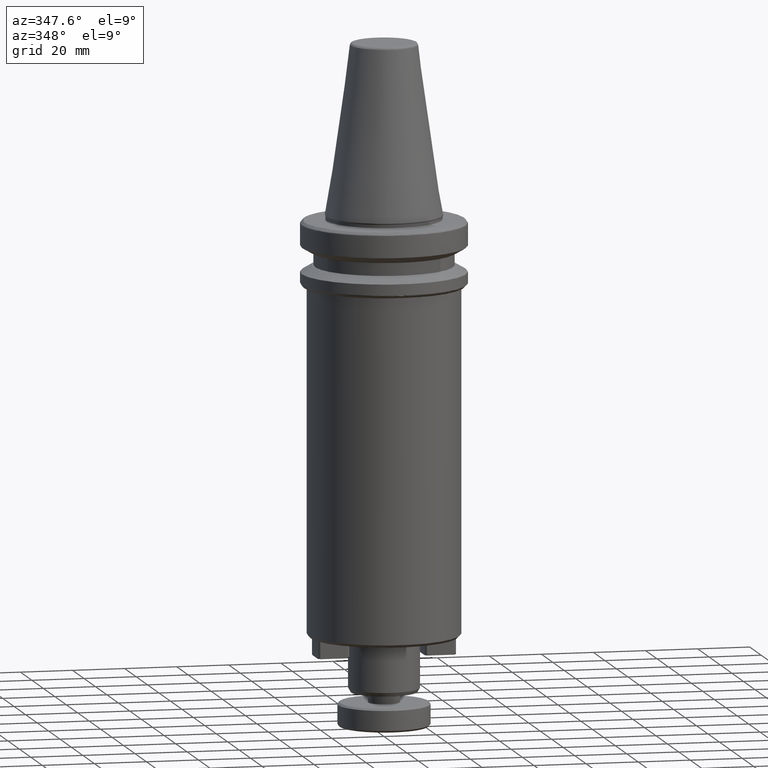
[diagram: clean part render]
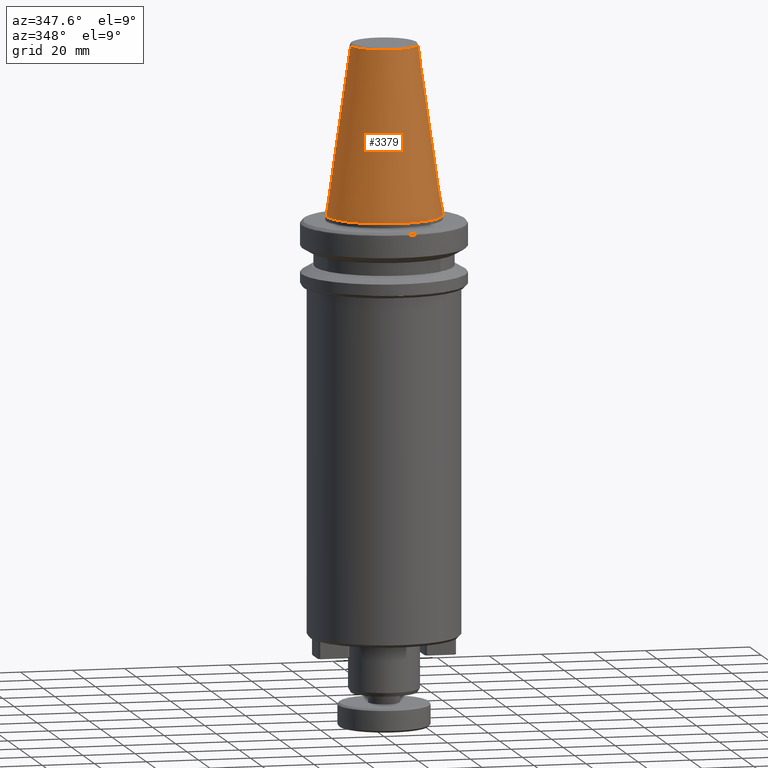
[diagram: same view with one face highlighted and labeled with its STEP entity id]
A machine part, auxiliary view. The second image highlights one B-rep face of the part: STEP entity #3379.
In plain terms, the highlighted conical surface has half-angle 8.297 deg.
Its self-contained STEP definition (entity closure, byte-faithful):
#22 = CARTESIAN_POINT ( 'NONE',  ( 22.22500000000000100, 2.721777511104992800E-015, 0.0000000000000000000 ) ) ;
#36 = FACE_OUTER_BOUND ( 'NONE', #2541, .T. ) ;
#174 = VECTOR ( 'NONE', #853, 1000.000000000000000 ) ;
#258 = AXIS2_PLACEMENT_3D ( 'NONE', #1555, #1553, #1542 ) ;
#353 = DIRECTION ( 'NONE',  ( 0.1443082272673070200, 1.767266086135363300E-017, -0.9895327864921743500 ) ) ;
#454 = CARTESIAN_POINT ( 'NONE',  ( 22.22500000000000500, 2.721777511104993200E-015, -2.775557561562891400E-014 ) ) ;
#566 = ORIENTED_EDGE ( 'NONE', *, *, #619, .F. ) ;
#599 = VERTEX_POINT ( 'NONE', #1602 ) ;
#603 = DIRECTION ( 'NONE',  ( -1.000000000000000000, 0.0000000000000000000, 0.0000000000000000000 ) ) ;
#619 = EDGE_CURVE ( 'NONE', #2594, #599, #1182, .T. ) ;
#657 = VERTEX_POINT ( 'NONE', #1122 ) ;
#685 = AXIS2_PLACEMENT_3D ( 'NONE', #1813, #1524, #2310 ) ;
#853 = DIRECTION ( 'NONE',  ( -0.1443082272673070200, 0.0000000000000000000, -0.9895327864921743500 ) ) ;
#913 = DIRECTION ( 'NONE',  ( 0.0000000000000000000, 0.0000000000000000000, -1.000000000000000000 ) ) ;
#1122 = CARTESIAN_POINT ( 'NONE',  ( 12.81219950706225000, 2.145409711370550300E-015, 64.54430822726730800 ) ) ;
#1182 = CIRCLE ( 'NONE', #258, 22.22500000000000500 ) ;
#1194 = CARTESIAN_POINT ( 'NONE',  ( 0.0000000000000000000, 0.0000000000000000000, 64.54430822726730800 ) ) ;
#1368 = ORIENTED_EDGE ( 'NONE', *, *, #3102, .T. ) ;
#1502 = AXIS2_PLACEMENT_3D ( 'NONE', #1194, #913, #603 ) ;
#1524 = DIRECTION ( 'NONE',  ( 0.0000000000000000000, 0.0000000000000000000, -1.000000000000000000 ) ) ;
#1542 = DIRECTION ( 'NONE',  ( 1.000000000000000000, 0.0000000000000000000, 9.822541477422708000E-017 ) ) ;
#1553 = DIRECTION ( 'NONE',  ( -0.0000000000000000000, -0.0000000000000000000, -1.000000000000000000 ) ) ;
#1555 = CARTESIAN_POINT ( 'NONE',  ( 0.0000000000000000000, 0.0000000000000000000, 0.0000000000000000000 ) ) ;
#1602 = CARTESIAN_POINT ( 'NONE',  ( -22.22500000000000100, 0.0000000000000000000, 0.0000000000000000000 ) ) ;
#1797 = LINE ( 'NONE', #454, #3152 ) ;
#1813 = CARTESIAN_POINT ( 'NONE',  ( 0.0000000000000000000, 0.0000000000000000000, -2.775557561562891400E-014 ) ) ;
#2110 = CONICAL_SURFACE ( 'NONE', #685, 22.22500000000000500, 0.1448138465474190200 ) ;
#2310 = DIRECTION ( 'NONE',  ( -1.000000000000000000, 0.0000000000000000000, 0.0000000000000000000 ) ) ;
#2476 = EDGE_CURVE ( 'NONE', #657, #2594, #1797, .T. ) ;
#2524 = CARTESIAN_POINT ( 'NONE',  ( -12.81219950706225000, 0.0000000000000000000, 64.54430822726730800 ) ) ;
#2541 = EDGE_LOOP ( 'NONE', ( #2619, #3231, #1368, #566 ) ) ;
#2594 = VERTEX_POINT ( 'NONE', #22 ) ;
#2619 = ORIENTED_EDGE ( 'NONE', *, *, #2476, .F. ) ;
#2884 = CIRCLE ( 'NONE', #1502, 12.81219950706225000 ) ;
#2935 = EDGE_CURVE ( 'NONE', #657, #3006, #2884, .T. ) ;
#3006 = VERTEX_POINT ( 'NONE', #2524 ) ;
#3042 = LINE ( 'NONE', #3239, #174 ) ;
#3102 = EDGE_CURVE ( 'NONE', #3006, #599, #3042, .T. ) ;
#3152 = VECTOR ( 'NONE', #353, 1000.000000000000000 ) ;
#3231 = ORIENTED_EDGE ( 'NONE', *, *, #2935, .T. ) ;
#3239 = CARTESIAN_POINT ( 'NONE',  ( -22.22500000000000500, 0.0000000000000000000, -2.775557561562891400E-014 ) ) ;
#3379 = ADVANCED_FACE ( 'NONE', ( #36 ), #2110, .T. ) ;